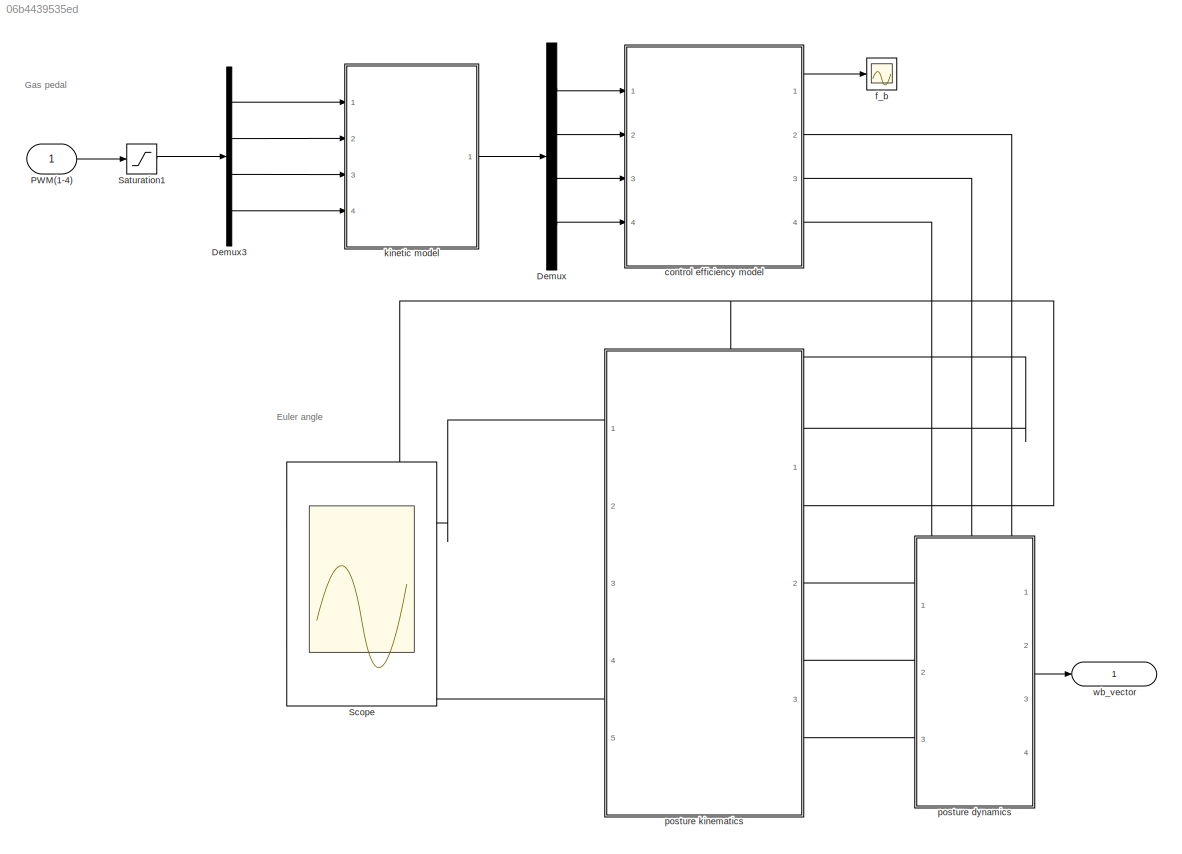
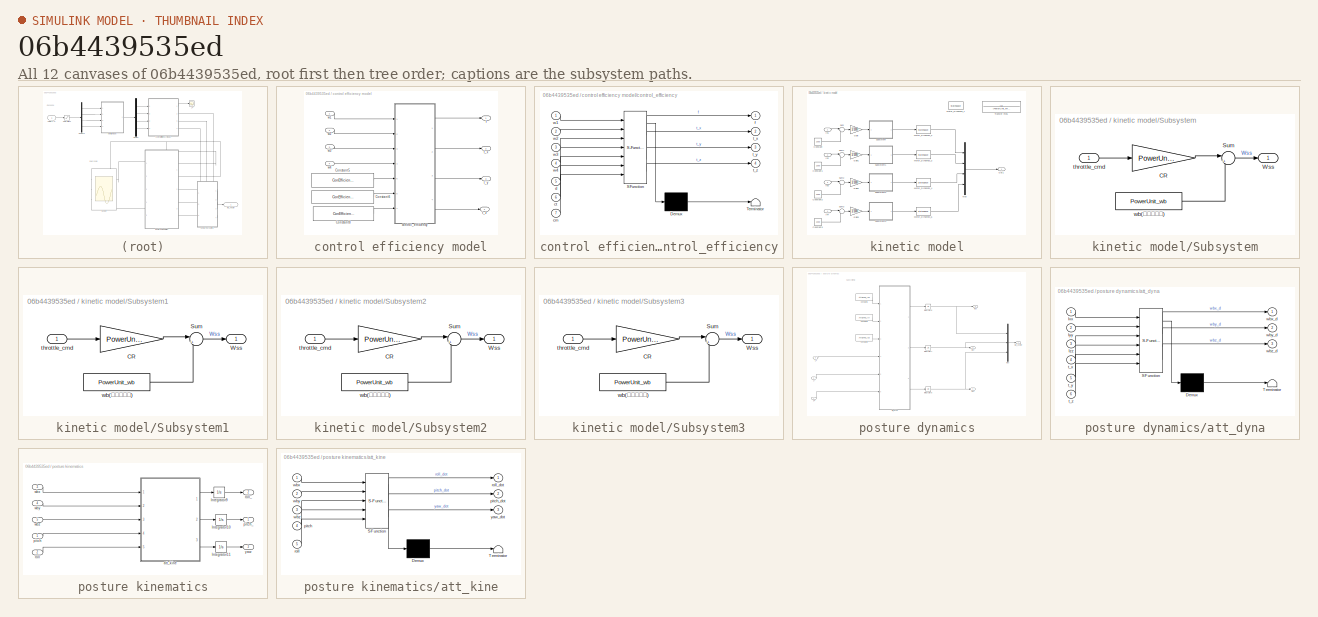
[diagram: thumbnail index - all 12 canvases of the model, root first then tree order]
MODEL mdl_06b4439535ed
KIND model
CONFIG AbsTol = auto
CONFIG EnableMultiTasking = off
CONFIG FixedStep = 0.005
CONFIG MaxStep = auto
CONFIG MinStep = auto
CONFIG RelTol = 1e-3
CONFIG SampleTimeConstraint = Unconstrained
CONFIG SolverName = FixedStepAuto
CONFIG StartTime = 0.0
CONFIG StopTime = 20
BLOCK [Demux] Demux
  Ports = [1, 4]
BLOCK [Demux] Demux3
  Ports = [1, 4]
BLOCK [Inport] PWM(1-4)
BLOCK [Saturate] Saturation1
  LowerLimit = 1000
  UpperLimit = 2000
BLOCK [Scope] Scope
  Floating = off
  NumInputPorts = 3
  Ports = [3]
  ScopeSpecificationString = Simulink.scopes.TimeScopeBlockCfg('CurrentConfiguration', extmgr.ConfigurationSet(extmgr.Configuration('Core','General UI',true),extmgr.Configuration('Core','Source UI',true),extmgr.Configuration('Sources','WiredSimulink',true),extmgr.Configuration('Visuals','Time Domain',true),extmgr.Configuration('Tools','Plot Navigation',true),extmgr.Configuration('Tools','Measurements',true,'Version','2022a'))...<+19ch>
BLOCK [SubSystem] control efficiency model
  Ports = [4, 4]
  RequestExecContextInheritance = off
BLOCK [Constant] control efficiency model/Constant5
  Value = ConEfficiency_drone_R
BLOCK [Constant] control efficiency model/Constant6
  Value = ConEfficiency_drone_cT
BLOCK [Constant] control efficiency model/Constant8
  Value = ConEfficiency_drone_cM
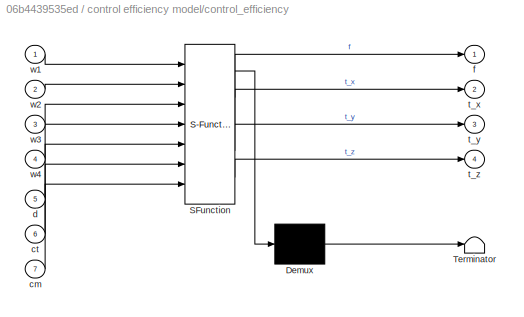
BLOCK [SubSystem] control efficiency model/control_efficiency
  ErrorFcn = Stateflow.Translate.translate
  PermitHierarchicalResolution = ExplicitOnly
  Ports = [7, 4]
  RequestExecContextInheritance = off
  SFBlockType = MATLAB Function
  TreatAsAtomicUnit = on
BLOCK [Demux] control efficiency model/control_efficiency/ Demux 
  Outputs = 1
  Ports = [1, 1]
BLOCK [S-Function] control efficiency model/control_efficiency/ SFunction 
  EnableBusSupport = on
  FunctionName = sf_sfun
  PortCounts = [7 5]
  Ports = [7, 5]
  SFcnIsStateOwnerBlock = off
  SFunctionDeploymentMode = off
  Tag = Stateflow S-Function 7
BLOCK [Terminator] control efficiency model/control_efficiency/ Terminator 
BLOCK [Inport] control efficiency model/control_efficiency/cm
  Port = 7
BLOCK [Inport] control efficiency model/control_efficiency/ct
  Port = 6
BLOCK [Inport] control efficiency model/control_efficiency/d
  Port = 5
BLOCK [Outport] control efficiency model/control_efficiency/f
  VectorParamsAs1DForOutWhenUnconnected = off
BLOCK [Outport] control efficiency model/control_efficiency/t_x
  Port = 2
  VectorParamsAs1DForOutWhenUnconnected = off
BLOCK [Outport] control efficiency model/control_efficiency/t_y
  Port = 3
  VectorParamsAs1DForOutWhenUnconnected = off
BLOCK [Outport] control efficiency model/control_efficiency/t_z
  Port = 4
  VectorParamsAs1DForOutWhenUnconnected = off
BLOCK [Inport] control efficiency model/control_efficiency/w1
BLOCK [Inport] control efficiency model/control_efficiency/w2
  Port = 2
BLOCK [Inport] control efficiency model/control_efficiency/w3
  Port = 3
BLOCK [Inport] control efficiency model/control_efficiency/w4
  Port = 4
BLOCK [Outport] control efficiency model/f
  VectorParamsAs1DForOutWhenUnconnected = off
BLOCK [Outport] control efficiency model/t_x
  Port = 2
  VectorParamsAs1DForOutWhenUnconnected = off
BLOCK [Outport] control efficiency model/t_y
  Port = 3
  VectorParamsAs1DForOutWhenUnconnected = off
BLOCK [Outport] control efficiency model/t_z
  Port = 4
  VectorParamsAs1DForOutWhenUnconnected = off
BLOCK [Inport] control efficiency model/w1
BLOCK [Inport] control efficiency model/w2
  Port = 2
BLOCK [Inport] control efficiency model/w3
  Port = 3
BLOCK [Inport] control efficiency model/w4
  Port = 4
BLOCK [Scope] f_b
  Floating = off
  NumInputPorts = 1
  Ports = [1]
  ScopeSpecificationString = Simulink.scopes.TimeScopeBlockCfg('CurrentConfiguration', extmgr.ConfigurationSet(extmgr.Configuration('Core','General UI',true),extmgr.Configuration('Core','Source UI',true),extmgr.Configuration('Sources','WiredSimulink',true,'DataLoggingVariableName','ScopeData3'),extmgr.Configuration('Visuals','Time Domain',true,'SerializedDisplays',{struct('MinYLimReal','-1.00000','MaxYLimReal','1.00000','YLab...<+1389ch>
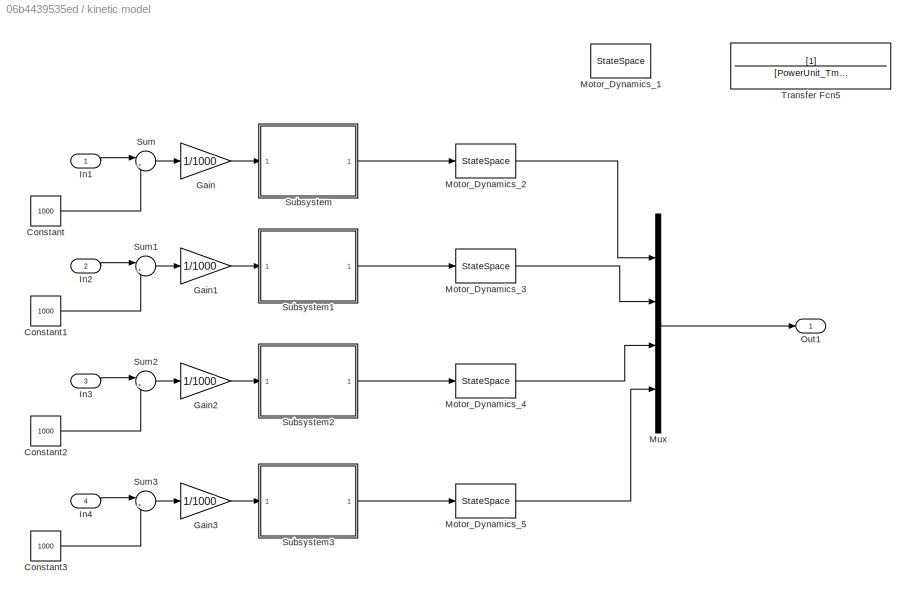
BLOCK [SubSystem] kinetic model
  Ports = [4, 1]
  RequestExecContextInheritance = off
BLOCK [Constant] kinetic model/Constant
  Value = 1000
BLOCK [Constant] kinetic model/Constant1
  Value = 1000
BLOCK [Constant] kinetic model/Constant2
  Value = 1000
BLOCK [Constant] kinetic model/Constant3
  Value = 1000
BLOCK [Gain] kinetic model/Gain
  Gain = 1/1000
BLOCK [Gain] kinetic model/Gain1
  Gain = 1/1000
BLOCK [Gain] kinetic model/Gain2
  Gain = 1/1000
BLOCK [Gain] kinetic model/Gain3
  Gain = 1/1000
BLOCK [Inport] kinetic model/In1
BLOCK [Inport] kinetic model/In2
  Port = 2
BLOCK [Inport] kinetic model/In3
  Port = 3
BLOCK [Inport] kinetic model/In4
  Port = 4
BLOCK [StateSpace] kinetic model/Motor_Dynamics_1
  A = -1/PowerUnit_Tm
  C = 1/PowerUnit_Tm
  Commented = on
  D = 0
  InitialCondition = 557.142*PowerUnit_Tm
  Ports = [1, 1]
BLOCK [StateSpace] kinetic model/Motor_Dynamics_2
  A = -1/PowerUnit_Tm
  C = 1/PowerUnit_Tm
  D = 0
  InitialCondition = 557.142*PowerUnit_Tm
  Ports = [1, 1]
BLOCK [StateSpace] kinetic model/Motor_Dynamics_3
  A = -1/PowerUnit_Tm
  C = 1/PowerUnit_Tm
  D = 0
  InitialCondition = 557.142*PowerUnit_Tm
  Ports = [1, 1]
BLOCK [StateSpace] kinetic model/Motor_Dynamics_4
  A = -1/PowerUnit_Tm
  C = 1/PowerUnit_Tm
  D = 0
  InitialCondition = 557.142*PowerUnit_Tm
  Ports = [1, 1]
BLOCK [StateSpace] kinetic model/Motor_Dynamics_5
  A = -1/PowerUnit_Tm
  C = 1/PowerUnit_Tm
  D = 0
  InitialCondition = 557.142*PowerUnit_Tm
  Ports = [1, 1]
BLOCK [Mux] kinetic model/Mux
  DisplayOption = bar
  Ports = [4, 1]
BLOCK [Outport] kinetic model/Out1
  VectorParamsAs1DForOutWhenUnconnected = off
BLOCK [SubSystem] kinetic model/Subsystem
  Ports = [1, 1]
  RequestExecContextInheritance = off
BLOCK [Gain] kinetic model/Subsystem/CR
  Gain = PowerUnit_CR
BLOCK [Sum] kinetic model/Subsystem/Sum
  Inputs = |++
  Ports = [2, 1]
BLOCK [Outport] kinetic model/Subsystem/Wss
  VectorParamsAs1DForOutWhenUnconnected = off
BLOCK [Inport] kinetic model/Subsystem/throttle_cmd 
BLOCK [Constant] kinetic model/Subsystem/wb(转速常参数)
  Value = PowerUnit_wb
BLOCK [SubSystem] kinetic model/Subsystem1
  Ports = [1, 1]
  RequestExecContextInheritance = off
BLOCK [Gain] kinetic model/Subsystem1/CR
  Gain = PowerUnit_CR
BLOCK [Sum] kinetic model/Subsystem1/Sum
  Inputs = |++
  Ports = [2, 1]
BLOCK [Outport] kinetic model/Subsystem1/Wss
  VectorParamsAs1DForOutWhenUnconnected = off
BLOCK [Inport] kinetic model/Subsystem1/throttle_cmd 
BLOCK [Constant] kinetic model/Subsystem1/wb(转速常参数)
  Value = PowerUnit_wb
BLOCK [SubSystem] kinetic model/Subsystem2
  Ports = [1, 1]
  RequestExecContextInheritance = off
BLOCK [Gain] kinetic model/Subsystem2/CR
  Gain = PowerUnit_CR
BLOCK [Sum] kinetic model/Subsystem2/Sum
  Inputs = |++
  Ports = [2, 1]
BLOCK [Outport] kinetic model/Subsystem2/Wss
  VectorParamsAs1DForOutWhenUnconnected = off
BLOCK [Inport] kinetic model/Subsystem2/throttle_cmd 
BLOCK [Constant] kinetic model/Subsystem2/wb(转速常参数)
  Value = PowerUnit_wb
BLOCK [SubSystem] kinetic model/Subsystem3
  Ports = [1, 1]
  RequestExecContextInheritance = off
BLOCK [Gain] kinetic model/Subsystem3/CR
  Gain = PowerUnit_CR
BLOCK [Sum] kinetic model/Subsystem3/Sum
  Inputs = |++
  Ports = [2, 1]
BLOCK [Outport] kinetic model/Subsystem3/Wss
  VectorParamsAs1DForOutWhenUnconnected = off
BLOCK [Inport] kinetic model/Subsystem3/throttle_cmd 
BLOCK [Constant] kinetic model/Subsystem3/wb(转速常参数)
  Value = PowerUnit_wb
BLOCK [Sum] kinetic model/Sum
  Inputs = |+-
  Ports = [2, 1]
BLOCK [Sum] kinetic model/Sum1
  Inputs = |+-
  Ports = [2, 1]
BLOCK [Sum] kinetic model/Sum2
  Inputs = |+-
  Ports = [2, 1]
BLOCK [Sum] kinetic model/Sum3
  Inputs = |+-
  Ports = [2, 1]
BLOCK [TransferFcn] kinetic model/Transfer Fcn5
  Commented = on
  Denominator = [PowerUnit_Tm 1]
BLOCK [SubSystem] posture dynamics
  PortSchema = {"entries":[{"content":{"sides":[{"content":{"connectorIds":["Out2","Out3","Out4"]},"type":"ConnectorPlacement.EquallySpacedRectSide","uuid":"5d189c7e-edc3-4f6c-b461-57b5df11e8ab"},{"content":{"connectorIds":["Out1"],"side":"RIGHT"},"type":"ConnectorPlacement.EquallySpacedRectSide","uuid":"fc686436-54b8-485f-9e61-7e0ab2577c56"},{"content":{"connectorIds":["In1","In2","In3"],"side":"TOP"},"type":"C...<+272ch>
  Ports = [3, 4]
  RequestExecContextInheritance = off
BLOCK [Constant] posture dynamics/Constant1
  Value = AttDyna_Ixx
BLOCK [Constant] posture dynamics/Constant2
  Value = AttDyna_Izz
BLOCK [Constant] posture dynamics/Constant4
  Value = AttDyna_Iyy
BLOCK [Integrator] posture dynamics/Integrator6
  Ports = [1, 1]
BLOCK [Integrator] posture dynamics/Integrator7
  Ports = [1, 1]
BLOCK [Integrator] posture dynamics/Integrator8
  Ports = [1, 1]
BLOCK [Mux] posture dynamics/Mux
  DisplayOption = bar
  Inputs = 3
  Ports = [3, 1]
BLOCK [SubSystem] posture dynamics/att_dyna
  ErrorFcn = Stateflow.Translate.translate
  PermitHierarchicalResolution = ExplicitOnly
  Ports = [6, 3]
  RequestExecContextInheritance = off
  SFBlockType = MATLAB Function
  TreatAsAtomicUnit = on
BLOCK [Demux] posture dynamics/att_dyna/ Demux 
  Outputs = 1
  Ports = [1, 1]
BLOCK [S-Function] posture dynamics/att_dyna/ SFunction 
  EnableBusSupport = on
  FunctionName = sf_sfun
  PortCounts = [6 4]
  Ports = [6, 4]
  SFcnIsStateOwnerBlock = off
  SFunctionDeploymentMode = off
  Tag = Stateflow S-Function 2
BLOCK [Terminator] posture dynamics/att_dyna/ Terminator 
BLOCK [Inport] posture dynamics/att_dyna/Ixx
BLOCK [Inport] posture dynamics/att_dyna/Iyy
  Port = 2
BLOCK [Inport] posture dynamics/att_dyna/Izz
  Port = 3
BLOCK [Inport] posture dynamics/att_dyna/t_x
  Port = 4
BLOCK [Inport] posture dynamics/att_dyna/t_y
  Port = 5
BLOCK [Inport] posture dynamics/att_dyna/t_z
  Port = 6
BLOCK [Outport] posture dynamics/att_dyna/wbx_d
  VectorParamsAs1DForOutWhenUnconnected = off
BLOCK [Outport] posture dynamics/att_dyna/wby_d
  Port = 2
  VectorParamsAs1DForOutWhenUnconnected = off
BLOCK [Outport] posture dynamics/att_dyna/wbz_d
  Port = 3
  VectorParamsAs1DForOutWhenUnconnected = off
BLOCK [Inport] posture dynamics/t_x
  Port = 3
BLOCK [Inport] posture dynamics/t_y
  Port = 2
BLOCK [Inport] posture dynamics/t_z
BLOCK [Outport] posture dynamics/wb_vector
  VectorParamsAs1DForOutWhenUnconnected = off
BLOCK [Outport] posture dynamics/wbx
  Port = 2
  VectorParamsAs1DForOutWhenUnconnected = off
BLOCK [Outport] posture dynamics/wby
  Port = 3
  VectorParamsAs1DForOutWhenUnconnected = off
BLOCK [Outport] posture dynamics/wbz
  Port = 4
  VectorParamsAs1DForOutWhenUnconnected = off
BLOCK [SubSystem] posture kinematics
  PortSchema = {"entries":[{"content":{"sides":[{"content":{"connectorIds":["Out1","Out2","Out3"]},"type":"ConnectorPlacement.EquallySpacedRectSide","uuid":"791921f8-9208-402e-9d40-bc7a704c4e69"},{"content":{"connectorIds":["In1","In2","In3","In4","In5"],"side":"RIGHT"},"type":"ConnectorPlacement.EquallySpacedRectSide","uuid":"5f856742-46e3-41c0-a630-d7a262267b45"},{"content":{"connectorIds":[],"side":"TOP"},"ty...<+278ch>
  Ports = [5, 3]
  RequestExecContextInheritance = off
BLOCK [Integrator] posture kinematics/Integrator10
  Ports = [1, 1]
BLOCK [Integrator] posture kinematics/Integrator11
  Ports = [1, 1]
BLOCK [Integrator] posture kinematics/Integrator9
  Ports = [1, 1]
BLOCK [SubSystem] posture kinematics/att_kine
  ErrorFcn = Stateflow.Translate.translate
  PermitHierarchicalResolution = ExplicitOnly
  Ports = [5, 3]
  RequestExecContextInheritance = off
  SFBlockType = MATLAB Function
  TreatAsAtomicUnit = on
BLOCK [Demux] posture kinematics/att_kine/ Demux 
  Outputs = 1
  Ports = [1, 1]
BLOCK [S-Function] posture kinematics/att_kine/ SFunction 
  EnableBusSupport = on
  FunctionName = sf_sfun
  PortCounts = [5 4]
  Ports = [5, 4]
  SFcnIsStateOwnerBlock = off
  SFunctionDeploymentMode = off
  Tag = Stateflow S-Function 6
BLOCK [Terminator] posture kinematics/att_kine/ Terminator 
BLOCK [Inport] posture kinematics/att_kine/pitch
  Port = 4
BLOCK [Outport] posture kinematics/att_kine/pitch_dot
  Port = 2
  VectorParamsAs1DForOutWhenUnconnected = off
BLOCK [Inport] posture kinematics/att_kine/roll
  Port = 5
BLOCK [Outport] posture kinematics/att_kine/roll_dot
  VectorParamsAs1DForOutWhenUnconnected = off
BLOCK [Inport] posture kinematics/att_kine/wbx
BLOCK [Inport] posture kinematics/att_kine/wby
  Port = 2
BLOCK [Inport] posture kinematics/att_kine/wbz
  Port = 3
BLOCK [Outport] posture kinematics/att_kine/yaw_dot
  Port = 3
  VectorParamsAs1DForOutWhenUnconnected = off
BLOCK [Inport] posture kinematics/pitch
  NameLocation = top
BLOCK [Outport] posture kinematics/pitch_
  VectorParamsAs1DForOutWhenUnconnected = off
BLOCK [Inport] posture kinematics/roll
  Port = 2
BLOCK [Outport] posture kinematics/roll_
  Port = 2
  VectorParamsAs1DForOutWhenUnconnected = off
BLOCK [Inport] posture kinematics/wbx
  Port = 3
BLOCK [Inport] posture kinematics/wby
  Port = 4
BLOCK [Inport] posture kinematics/wbz
  Port = 5
BLOCK [Outport] posture kinematics/yaw
  Port = 3
  VectorParamsAs1DForOutWhenUnconnected = off
BLOCK [Outport] wb_vector
  NameLocation = top
  VectorParamsAs1DForOutWhenUnconnected = off
ANNOTATION (root): Euler angle
ANNOTATION (root): Gas pedal
ANNOTATION posture dynamics: Subsystem2
LINE Demux3:1 -> kinetic model:1
LINE Demux3:2 -> kinetic model:2
LINE Demux3:3 -> kinetic model:3
LINE Demux3:4 -> kinetic model:4
LINE Demux:1 -> control efficiency model:1
LINE Demux:2 -> control efficiency model:2
LINE Demux:3 -> control efficiency model:3
LINE Demux:4 -> control efficiency model:4
LINE PWM(1-4):1 -> Saturation1:1
LINE Saturation1:1 -> Demux3:1
LINE control efficiency model/Constant5:1 -> control efficiency model/control_efficiency:5
LINE control efficiency model/Constant6:1 -> control efficiency model/control_efficiency:6
LINE control efficiency model/Constant8:1 -> control efficiency model/control_efficiency:7
LINE control efficiency model/control_efficiency:1 -> control efficiency model/f:1
LINE control efficiency model/control_efficiency:2 -> control efficiency model/t_x:1
LINE control efficiency model/control_efficiency:3 -> control efficiency model/t_y:1
LINE control efficiency model/control_efficiency:4 -> control efficiency model/t_z:1
LINE control efficiency model/w1:1 -> control efficiency model/control_efficiency:1
LINE control efficiency model/w2:1 -> control efficiency model/control_efficiency:2
LINE control efficiency model/w3:1 -> control efficiency model/control_efficiency:3
LINE control efficiency model/w4:1 -> control efficiency model/control_efficiency:4
LINE control efficiency model:1 -> f_b:1
LINE control efficiency model:2 -> posture dynamics:3
LINE control efficiency model:3 -> posture dynamics:2
LINE control efficiency model:4 -> posture dynamics:1
LINE kinetic model/Constant1:1 -> kinetic model/Sum1:2
LINE kinetic model/Constant2:1 -> kinetic model/Sum2:2
LINE kinetic model/Constant3:1 -> kinetic model/Sum3:2
LINE kinetic model/Constant:1 -> kinetic model/Sum:2
LINE kinetic model/Gain1:1 -> kinetic model/Subsystem1:1
LINE kinetic model/Gain2:1 -> kinetic model/Subsystem2:1
LINE kinetic model/Gain3:1 -> kinetic model/Subsystem3:1
LINE kinetic model/Gain:1 -> kinetic model/Subsystem:1
LINE kinetic model/In1:1 -> kinetic model/Sum:1
LINE kinetic model/In2:1 -> kinetic model/Sum1:1
LINE kinetic model/In3:1 -> kinetic model/Sum2:1
LINE kinetic model/In4:1 -> kinetic model/Sum3:1
LINE kinetic model/Motor_Dynamics_2:1 -> kinetic model/Mux:1
LINE kinetic model/Motor_Dynamics_3:1 -> kinetic model/Mux:2
LINE kinetic model/Motor_Dynamics_4:1 -> kinetic model/Mux:3
LINE kinetic model/Motor_Dynamics_5:1 -> kinetic model/Mux:4
LINE kinetic model/Mux:1 -> kinetic model/Out1:1
LINE kinetic model/Subsystem/CR:1 -> kinetic model/Subsystem/Sum:1
LINE kinetic model/Subsystem/Sum:1 -> kinetic model/Subsystem/Wss:1
LINE kinetic model/Subsystem/throttle_cmd :1 -> kinetic model/Subsystem/CR:1
LINE kinetic model/Subsystem/wb(转速常参数):1 -> kinetic model/Subsystem/Sum:2
LINE kinetic model/Subsystem1/CR:1 -> kinetic model/Subsystem1/Sum:1
LINE kinetic model/Subsystem1/Sum:1 -> kinetic model/Subsystem1/Wss:1
LINE kinetic model/Subsystem1/throttle_cmd :1 -> kinetic model/Subsystem1/CR:1
LINE kinetic model/Subsystem1/wb(转速常参数):1 -> kinetic model/Subsystem1/Sum:2
LINE kinetic model/Subsystem1:1 -> kinetic model/Motor_Dynamics_3:1
LINE kinetic model/Subsystem2/CR:1 -> kinetic model/Subsystem2/Sum:1
LINE kinetic model/Subsystem2/Sum:1 -> kinetic model/Subsystem2/Wss:1
LINE kinetic model/Subsystem2/throttle_cmd :1 -> kinetic model/Subsystem2/CR:1
LINE kinetic model/Subsystem2/wb(转速常参数):1 -> kinetic model/Subsystem2/Sum:2
LINE kinetic model/Subsystem2:1 -> kinetic model/Motor_Dynamics_4:1
LINE kinetic model/Subsystem3/CR:1 -> kinetic model/Subsystem3/Sum:1
LINE kinetic model/Subsystem3/Sum:1 -> kinetic model/Subsystem3/Wss:1
LINE kinetic model/Subsystem3/throttle_cmd :1 -> kinetic model/Subsystem3/CR:1
LINE kinetic model/Subsystem3/wb(转速常参数):1 -> kinetic model/Subsystem3/Sum:2
LINE kinetic model/Subsystem3:1 -> kinetic model/Motor_Dynamics_5:1
LINE kinetic model/Subsystem:1 -> kinetic model/Motor_Dynamics_2:1
LINE kinetic model/Sum1:1 -> kinetic model/Gain1:1
LINE kinetic model/Sum2:1 -> kinetic model/Gain2:1
LINE kinetic model/Sum3:1 -> kinetic model/Gain3:1
LINE kinetic model/Sum:1 -> kinetic model/Gain:1
LINE kinetic model:1 -> Demux:1
LINE posture dynamics/Constant1:1 -> posture dynamics/att_dyna:1
LINE posture dynamics/Constant2:1 -> posture dynamics/att_dyna:3
LINE posture dynamics/Constant4:1 -> posture dynamics/att_dyna:2
NET posture dynamics/Integrator6:1 -> posture dynamics/Mux:1, posture dynamics/wbx:1
NET posture dynamics/Integrator7:1 -> posture dynamics/Mux:2, posture dynamics/wby:1
NET posture dynamics/Integrator8:1 -> posture dynamics/Mux:3, posture dynamics/wbz:1
LINE posture dynamics/Mux:1 -> posture dynamics/wb_vector:1
LINE posture dynamics/att_dyna:1 -> posture dynamics/Integrator6:1
LINE posture dynamics/att_dyna:2 -> posture dynamics/Integrator7:1
LINE posture dynamics/att_dyna:3 -> posture dynamics/Integrator8:1
LINE posture dynamics/t_x:1 -> posture dynamics/att_dyna:4
LINE posture dynamics/t_y:1 -> posture dynamics/att_dyna:5
LINE posture dynamics/t_z:1 -> posture dynamics/att_dyna:6
LINE posture dynamics:1 -> wb_vector:1
LINE posture dynamics:2 -> posture kinematics:3
LINE posture dynamics:3 -> posture kinematics:4
LINE posture dynamics:4 -> posture kinematics:5
LINE posture kinematics/Integrator10:1 -> posture kinematics/pitch_:1
LINE posture kinematics/Integrator11:1 -> posture kinematics/yaw:1
LINE posture kinematics/Integrator9:1 -> posture kinematics/roll_:1
LINE posture kinematics/att_kine:1 -> posture kinematics/Integrator9:1
LINE posture kinematics/att_kine:2 -> posture kinematics/Integrator10:1
LINE posture kinematics/att_kine:3 -> posture kinematics/Integrator11:1
LINE posture kinematics/pitch:1 -> posture kinematics/att_kine:4
LINE posture kinematics/roll:1 -> posture kinematics/att_kine:5
LINE posture kinematics/wbx:1 -> posture kinematics/att_kine:1
LINE posture kinematics/wby:1 -> posture kinematics/att_kine:2
LINE posture kinematics/wbz:1 -> posture kinematics/att_kine:3
NET posture kinematics:1 -> Scope:1, posture kinematics:1
NET posture kinematics:2 -> Scope:2, posture kinematics:2
LINE posture kinematics:3 -> Scope:3
note: NET lines group one-source signal fan-out (src -> all destinations, sorted); 1:1 wires keep LINE
CHART posture dynamics/att_dyna states=1 transitions=1
  STATE_LABEL 'eML_blk_kernel()'
  STATE_LABEL "SCRIPT:\nfunction [wbx_d,wby_d,wbz_d] = att_dyna(Ixx,Iyy,Izz,t_x,t_y,t_z)\n% wb = [wbx wby wbz]';\n% wb_cha = [   0 -wbz   wby;\n%            wbz    0  -wbx;\n%           -wby  wbx     0];\n% I = [Ixx   0   0;\n%        0 Iyy   0;\n%        0   0 Izz];\nI_inv = [1/Ixx     0     0;\n             0 1/Iyy     0;\n             0     0 1/Izz];\ntao = [t_x t_y t_z]';\n% G_x = Jrp * wby * (n1+n2-n3-n4);\n% G_y = Jrp *...<+148ch>"
CHART posture kinematics/att_kine states=1 transitions=1
  STATE_LABEL 'eML_blk_kernel()'
  STATE_LABEL 'SCRIPT:\nfunction [roll_dot,pitch_dot,yaw_dot] = att_kine(wbx,wby,wbz,pitch,roll)\n%姿态运动学\nroll_dot = wbx + tan(pitch)*sin(roll)*wby + tan(pitch)*cos(roll)*wbz;\npitch_dot = cos(roll)*wby - sin(roll)*wbz;\nyaw_dot = (sin(roll)/cos(pitch))*wby + (cos(roll)/cos(pitch))*wbz;\nend\n'
CHART control efficiency model/control_efficiency states=1 transitions=1
  STATE_LABEL 'eML_blk_kernel()'
  STATE_LABEL 'SCRIPT:\nfunction [f,t_x,t_y,t_z] = control_efficiency(w1,w2,w3,w4,d,ct,cm)\n%控制效率模型\n%X型机架\n%3↓   1↑\n%  \\ /\n%  / \\\n%2↑   4↓\n%转速单位是弧度\nf = -1*ct*(w1^2 + w2^2 + w3^2 + w4^2);%z轴朝下，所以拉力为负\nt_x = d*ct*sin(pi/4)*(-w1^2 + w2^2 + w3^2 - w4^2) / 2;\nt_y = d*ct*sin(pi/4)*(w1^2 - w2^2 + w3^2 - w4^2) / 2;\nt_z = cm*(w1^2 + w2^2 - w3^2 - w4^2);\n%十字型\n% f = ct*(n1^2 + n2^2 + n3^2 + n4^2);\n% tao_x = -d*ct*n2^2 + d*ct*n...<+85ch>'
CHART  states=0 transitions=0
CHART  states=0 transitions=0
CHART  states=0 transitions=0
